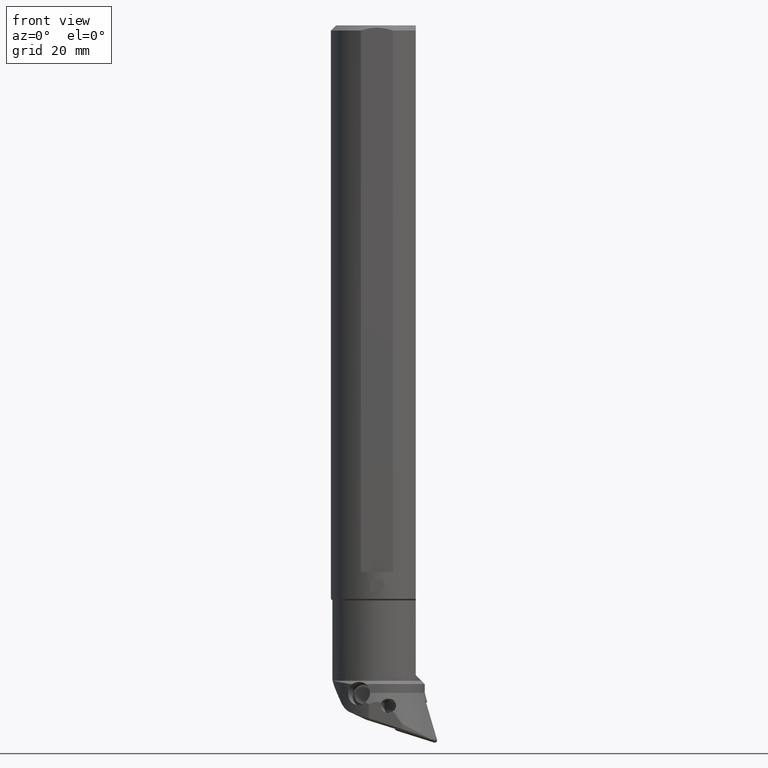
[diagram: clean part render]
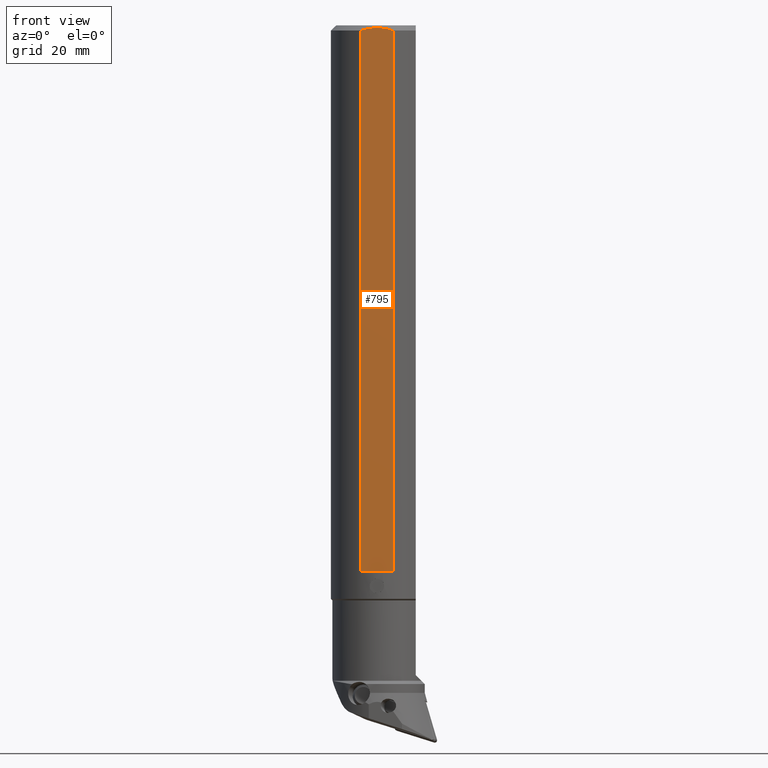
[diagram: same view with one face highlighted and labeled with its STEP entity id]
A machine part, front view. The second image highlights one B-rep face of the part: STEP entity #795.
In plain terms, the highlighted planar face has unit normal (0, 1, 0).
Its self-contained STEP definition (entity closure, byte-faithful):
#136=PLANE('',#4005);
#321=LINE('',#6093,#550);
#322=LINE('',#6097,#551);
#347=LINE('',#6471,#576);
#550=VECTOR('',#4586,1.);
#551=VECTOR('',#4589,1.);
#576=VECTOR('',#4710,1.);
#795=ADVANCED_FACE('',(#1038),#136,.F.);
#1038=FACE_OUTER_BOUND('',#1238,.T.);
#1238=EDGE_LOOP('',(#2079,#2080,#2081,#2082,#2083));
#2079=ORIENTED_EDGE('',*,*,#3211,.F.);
#2080=ORIENTED_EDGE('',*,*,#3210,.F.);
#2081=ORIENTED_EDGE('',*,*,#3206,.F.);
#2082=ORIENTED_EDGE('',*,*,#3269,.T.);
#2083=ORIENTED_EDGE('',*,*,#3204,.F.);
#2792=VERTEX_POINT('',#6092);
#2793=VERTEX_POINT('',#6094);
#2794=VERTEX_POINT('',#6096);
#2795=VERTEX_POINT('',#6098);
#2798=VERTEX_POINT('',#6169);
#3204=EDGE_CURVE('',#2792,#2793,#321,.T.);
#3206=EDGE_CURVE('',#2794,#2795,#322,.T.);
#3210=EDGE_CURVE('',#2795,#2798,#3618,.T.);
#3211=EDGE_CURVE('',#2798,#2792,#3619,.T.);
#3269=EDGE_CURVE('',#2794,#2793,#347,.T.);
#3618=B_SPLINE_CURVE_WITH_KNOTS('',3,(#6165,#6166,#6167,#6168),
 .UNSPECIFIED.,.F.,.F.,(4,4),(0.,1.),.UNSPECIFIED.);
#3619=B_SPLINE_CURVE_WITH_KNOTS('',3,(#6170,#6171,#6172,#6173),
 .UNSPECIFIED.,.F.,.F.,(4,4),(0.,1.),.UNSPECIFIED.);
#4005=AXIS2_PLACEMENT_3D('',#6472,#4711,#4712);
#4586=DIRECTION('',(0.,0.,-1.));
#4589=DIRECTION('',(0.,0.,1.));
#4710=DIRECTION('',(1.,-1.882354329222E-14,0.));
#4711=DIRECTION('',(0.,1.,0.));
#4712=DIRECTION('',(0.,0.,1.));
#6092=CARTESIAN_POINT('',(5.56776436283001,-15.,-1.8));
#6093=CARTESIAN_POINT('',(5.56776436283,-15.,-1.8));
#6094=CARTESIAN_POINT('',(5.56776436283,-15.,-190.));
#6096=CARTESIAN_POINT('',(-5.567764362831,-15.,-190.));
#6097=CARTESIAN_POINT('',(-5.567764362831,-15.,-190.));
#6098=CARTESIAN_POINT('',(-5.56776436283051,-15.,-1.80000000000017));
#6165=CARTESIAN_POINT('',(-5.56776436283179,-15.,-1.80000000000062));
#6166=CARTESIAN_POINT('',(-3.76466799738654,-15.,-1.17254901960829));
#6167=CARTESIAN_POINT('',(-1.91578988830163,-15.,-0.800000000002047));
#6168=CARTESIAN_POINT('',(-1.60310635483606E-11,-15.,-0.799999999999999));
#6169=CARTESIAN_POINT('',(0.,-15.,-0.799999999999999));
#6170=CARTESIAN_POINT('',(0.,-14.9999999998888,-0.800000000046069));
#6171=CARTESIAN_POINT('',(1.91578988827732,-14.9999999998888,-0.800000000046069));
#6172=CARTESIAN_POINT('',(3.76466799738764,-15.,-1.17254901960885));
#6173=CARTESIAN_POINT('',(5.56776436283,-15.,-1.79999999999999));
#6471=CARTESIAN_POINT('',(-5.567764362831,-15.,-190.));
#6472=CARTESIAN_POINT('',(0.,-15.,-95.40000000109));